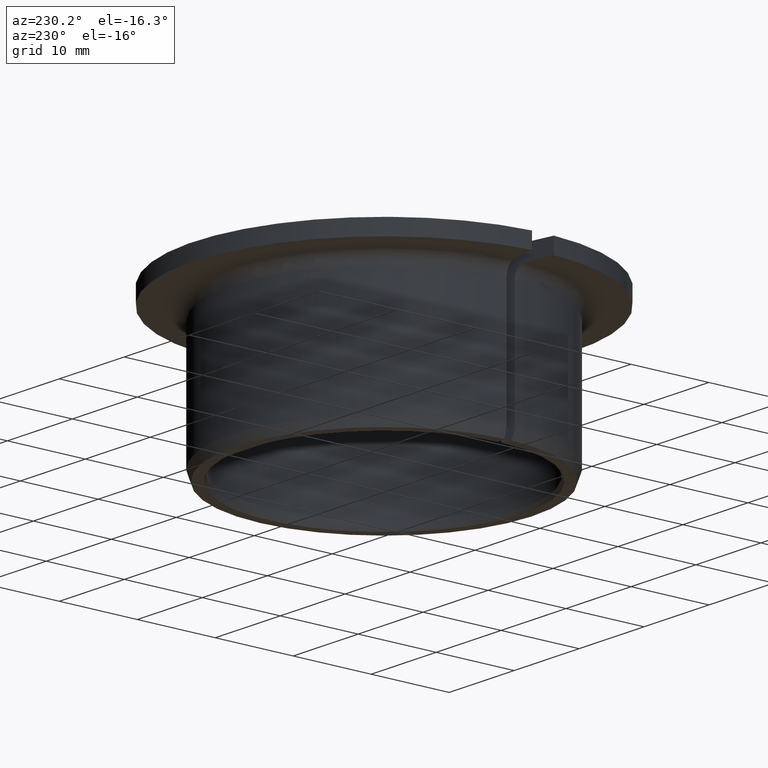
[diagram: clean part render]
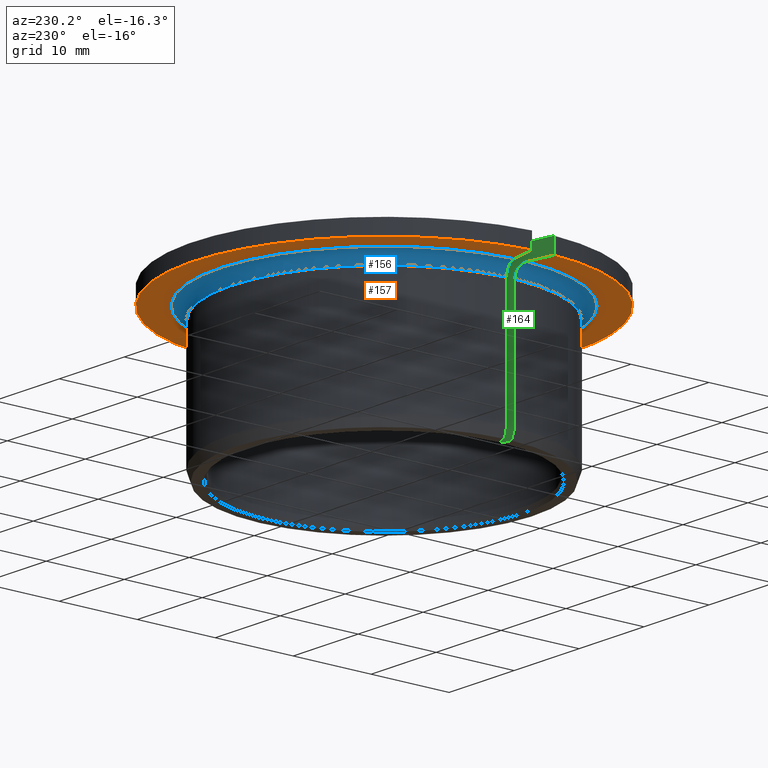
[diagram: same view with three faces highlighted in distinct colors, each labeled with its STEP entity id]
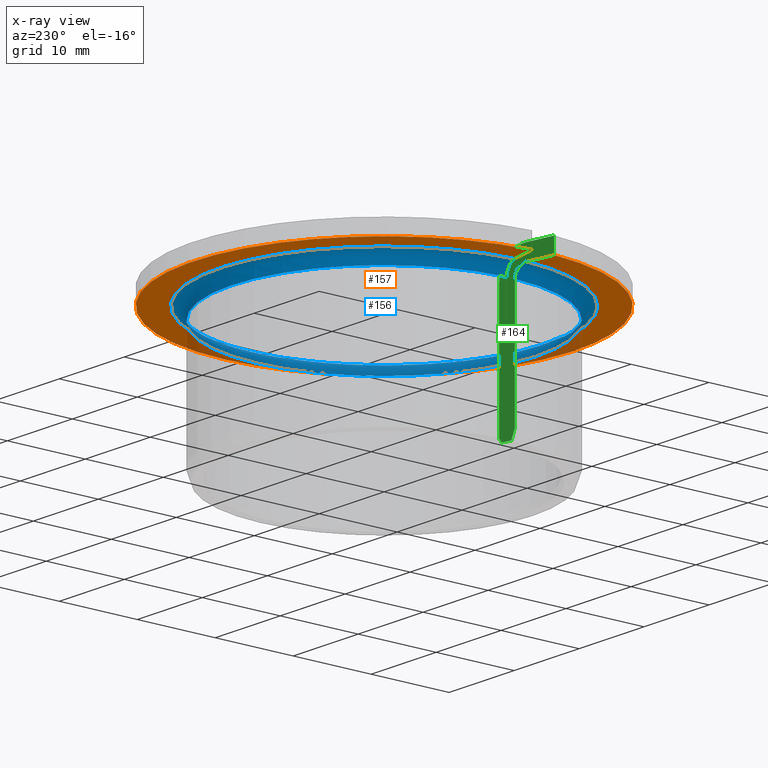
[diagram: x-ray of the same camera — body ghosted, the three highlighted faces saturated]
A machine part, auxiliary view with three faces highlighted in distinct colors.
The next image is the same camera in x-ray (body ghosted, the three faces saturated) — at least one of them is partly hidden behind the body in this view.
Their STEP definitions:

[orange] entity #157 — the highlighted planar face has unit normal (-0, 0, -1).
#157=ADVANCED_FACE('',(#175),#176,.T.);
#175=FACE_OUTER_BOUND('',#200,.T.);
#176=PLANE('',#201);
#200=EDGE_LOOP('',(#250,#251,#252,#253));
#201=AXIS2_PLACEMENT_3D('',#254,#255,#256);
#250=ORIENTED_EDGE('',*,*,#331,.T.);
#251=ORIENTED_EDGE('',*,*,#332,.T.);
#252=ORIENTED_EDGE('',*,*,#328,.F.);
#253=ORIENTED_EDGE('',*,*,#315,.F.);
#254=CARTESIAN_POINT('',(0.021,0.0,0.018));
#255=DIRECTION('',(0.0,-6.12323399573677E-017,-1.0));
#256=DIRECTION('',(0.0,1.0,-6.12323399573677E-017));
#315=EDGE_CURVE('',#347,#349,#350,.T.);
#328=EDGE_CURVE('',#349,#372,#373,.T.);
#331=EDGE_CURVE('',#347,#377,#378,.T.);
#332=EDGE_CURVE('',#377,#372,#379,.T.);
#347=VERTEX_POINT('',#415);
#349=VERTEX_POINT('',#418);
#350=LINE('',#419,#420);
#372=VERTEX_POINT('',#484);
#373=CIRCLE('',#485,0.021);
#377=VERTEX_POINT('',#502);
#378=CIRCLE('',#503,0.0245);
#379=LINE('',#504,#505);
#415=CARTESIAN_POINT('',(0.0244597654861355,-0.00140352141531771,0.018));
#418=CARTESIAN_POINT('',(0.0209851033973357,-0.000790844740217481,0.018));
#419=CARTESIAN_POINT('',(0.0208643083967683,-0.000769545322482752,0.018));
#420=VECTOR('',#528,1.0);
#484=CARTESIAN_POINT('',(0.0209851033973357,0.000790844740217485,0.018));
#485=AXIS2_PLACEMENT_3D('',#544,#545,#546);
#502=CARTESIAN_POINT('',(0.0244597654861355,0.00140352141531772,0.018));
#503=AXIS2_PLACEMENT_3D('',#550,#551,#552);
#504=CARTESIAN_POINT('',(0.0208643083967683,0.000769545322482756,0.018));
#505=VECTOR('',#553,1.0);
#528=DIRECTION('',(-0.984807753012208,0.173648177666931,-1.06328842478789E-017));
#544=CARTESIAN_POINT('',(0.0,0.0,0.018));
#545=DIRECTION('',(0.0,-6.12323399573677E-017,-1.0));
#546=DIRECTION('',(0.0,1.0,-6.12323399573677E-017));
#550=CARTESIAN_POINT('',(0.0,0.0,0.018));
#551=DIRECTION('',(0.0,-6.12323399573677E-017,-1.0));
#552=DIRECTION('',(0.0,1.0,-6.12323399573677E-017));
#553=DIRECTION('',(-0.984807753012208,-0.173648177666931,1.06328842478789E-017));

[blue] entity #156 — the highlighted toroidal blend (fillet) surface has major radius 21 mm and minor (blend) radius 1.5 mm.
#156=ADVANCED_FACE('',(#173),#174,.F.);
#173=FACE_OUTER_BOUND('',#198,.T.);
#174=TOROIDAL_SURFACE('',#199,0.021,0.0015);
#198=EDGE_LOOP('',(#243,#244,#245,#246));
#199=AXIS2_PLACEMENT_3D('',#247,#248,#249);
#243=ORIENTED_EDGE('',*,*,#328,.T.);
#244=ORIENTED_EDGE('',*,*,#329,.T.);
#245=ORIENTED_EDGE('',*,*,#330,.F.);
#246=ORIENTED_EDGE('',*,*,#316,.F.);
#247=CARTESIAN_POINT('',(0.0,0.0,0.0165));
#248=DIRECTION('',(0.0,-6.12323399573677E-017,-1.0));
#249=DIRECTION('',(0.0,1.0,-6.12323399573677E-017));
#316=EDGE_CURVE('',#349,#351,#352,.T.);
#328=EDGE_CURVE('',#349,#372,#373,.T.);
#329=EDGE_CURVE('',#372,#374,#375,.T.);
#330=EDGE_CURVE('',#351,#374,#376,.T.);
#349=VERTEX_POINT('',#418);
#351=VERTEX_POINT('',#421);
#352=B_SPLINE_CURVE_WITH_KNOTS('',3,(#422,#423,#424,#425,#426,#427,#428,#429,#430,#431,#432,#433,#434,#435),.UNSPECIFIED.,.F.,.F.,(4,2,2,2,2,2,4),(1.5125361572905E-005,0.00030952695449927,0.000603928547425635,0.000898330140352,0.00119273173327836,0.00178153491913109,0.00237033810498382),.UNSPECIFIED.);
#372=VERTEX_POINT('',#484);
#373=CIRCLE('',#485,0.021);
#374=VERTEX_POINT('',#486);
#375=B_SPLINE_CURVE_WITH_KNOTS('',3,(#487,#488,#489,#490,#491,#492,#493,#494,#495,#496,#497,#498,#499,#500),.UNSPECIFIED.,.F.,.F.,(4,2,2,2,2,2,4),(1.5125361572905E-005,0.00030952695449927,0.000603928547425635,0.000898330140352,0.00119273173327836,0.00178153491913109,0.00237033810498382),.UNSPECIFIED.);
#376=CIRCLE('',#501,0.0195);
#418=CARTESIAN_POINT('',(0.0209851033973357,-0.000790844740217481,0.018));
#421=CARTESIAN_POINT('',(0.0194928579205826,-0.000527721600825752,0.0165));
#422=CARTESIAN_POINT('',(0.0209851033973357,-0.000790844740217483,0.018));
#423=CARTESIAN_POINT('',(0.020887234603486,-0.000773587831292377,0.018));
#424=CARTESIAN_POINT('',(0.0207908761436344,-0.000756597235001043,0.0179904013861209));
#425=CARTESIAN_POINT('',(0.0206010739036773,-0.0007231299790977,0.0179526805169067));
#426=CARTESIAN_POINT('',(0.0205066387155741,-0.000706478507506826,0.0179240876814515));
#427=CARTESIAN_POINT('',(0.0203266420344327,-0.000674740236183614,0.0178494867840182));
#428=CARTESIAN_POINT('',(0.0202411221118634,-0.000659660766446542,0.0178037852975727));
#429=CARTESIAN_POINT('',(0.0200790171185027,-0.000631077282409484,0.0176956214893007));
#430=CARTESIAN_POINT('',(0.0200021474508167,-0.000617523085998351,0.0176325952962743));
#431=CARTESIAN_POINT('',(0.0197951778992534,-0.000581028769872612,0.0174257879324392));
#432=CARTESIAN_POINT('',(0.0196832067906457,-0.000561285242365243,0.0172585812978061));
#433=CARTESIAN_POINT('',(0.0195329495153544,-0.000534790830683643,0.0168969470921935));
#434=CARTESIAN_POINT('',(0.0194928579205806,-0.000527721600825397,0.0166991392971471));
#435=CARTESIAN_POINT('',(0.0194928579205806,-0.000527721600825391,0.0165000000000002));
#484=CARTESIAN_POINT('',(0.0209851033973357,0.000790844740217485,0.018));
#485=AXIS2_PLACEMENT_3D('',#544,#545,#546);
#486=CARTESIAN_POINT('',(0.0194928579205826,0.000527721600825754,0.0165));
#487=CARTESIAN_POINT('',(0.0209851033973357,0.000790844740217486,0.018));
#488=CARTESIAN_POINT('',(0.020887234603486,0.00077358783129238,0.018));
#489=CARTESIAN_POINT('',(0.0207908761436344,0.000756597235001047,0.0179904013861209));
#490=CARTESIAN_POINT('',(0.0206010739036773,0.000723129979097703,0.0179526805169067));
#491=CARTESIAN_POINT('',(0.0205066387155741,0.000706478507506829,0.0179240876814515));
#492=CARTESIAN_POINT('',(0.0203266420344327,0.000674740236183617,0.0178494867840182));
#493=CARTESIAN_POINT('',(0.0202411221118634,0.000659660766446545,0.0178037852975727));
#494=CARTESIAN_POINT('',(0.0200790171185027,0.000631077282409487,0.0176956214893007));
#495=CARTESIAN_POINT('',(0.0200021474508167,0.000617523085998354,0.0176325952962743));
#496=CARTESIAN_POINT('',(0.0197951778992534,0.000581028769872615,0.0174257879324392));
#497=CARTESIAN_POINT('',(0.0196832067906457,0.000561285242365246,0.0172585812978061));
#498=CARTESIAN_POINT('',(0.0195329495153544,0.000534790830683646,0.0168969470921935));
#499=CARTESIAN_POINT('',(0.0194928579205806,0.0005277216008254,0.0166991392971471));
#500=CARTESIAN_POINT('',(0.0194928579205806,0.000527721600825394,0.0165000000000002));
#501=AXIS2_PLACEMENT_3D('',#547,#548,#549);
#544=CARTESIAN_POINT('',(0.0,0.0,0.018));
#545=DIRECTION('',(0.0,-6.12323399573677E-017,-1.0));
#546=DIRECTION('',(0.0,1.0,-6.12323399573677E-017));
#547=CARTESIAN_POINT('',(0.0,0.0,0.0165));
#548=DIRECTION('',(0.0,-6.12323399573677E-017,-1.0));
#549=DIRECTION('',(0.0,1.0,-6.12323399573677E-017));

[green] entity #164 — the highlighted planar face has unit normal (-0.1736, 0.9848, 0).
#164=ADVANCED_FACE('',(#189),#190,.T.);
#189=FACE_OUTER_BOUND('',#214,.T.);
#190=PLANE('',#215);
#214=EDGE_LOOP('',(#299,#300,#301,#302,#303,#304,#305,#306,#307,#308));
#215=AXIS2_PLACEMENT_3D('',#309,#310,#311);
#299=ORIENTED_EDGE('',*,*,#338,.F.);
#300=ORIENTED_EDGE('',*,*,#323,.F.);
#301=ORIENTED_EDGE('',*,*,#340,.T.);
#302=ORIENTED_EDGE('',*,*,#341,.F.);
#303=ORIENTED_EDGE('',*,*,#336,.F.);
#304=ORIENTED_EDGE('',*,*,#329,.F.);
#305=ORIENTED_EDGE('',*,*,#332,.F.);
#306=ORIENTED_EDGE('',*,*,#334,.F.);
#307=ORIENTED_EDGE('',*,*,#335,.T.);
#308=ORIENTED_EDGE('',*,*,#326,.F.);
#309=CARTESIAN_POINT('',(0.00579044144318367,-0.00188838412504393,-7.15489013713033E-019));
#310=DIRECTION('',(0.173648177666931,-0.984807753012208,8.30434118528652E-017));
#311=DIRECTION('',(-6.20418997778693E-018,-8.54184564237123E-017,-1.0));
#323=EDGE_CURVE('',#362,#364,#365,.T.);
#326=EDGE_CURVE('',#367,#369,#370,.T.);
#329=EDGE_CURVE('',#372,#374,#375,.T.);
#332=EDGE_CURVE('',#377,#372,#379,.T.);
#334=EDGE_CURVE('',#380,#377,#382,.T.);
#335=EDGE_CURVE('',#380,#369,#383,.T.);
#336=EDGE_CURVE('',#374,#384,#385,.T.);
#338=EDGE_CURVE('',#364,#367,#387,.F.);
#340=EDGE_CURVE('',#362,#388,#390,.T.);
#341=EDGE_CURVE('',#384,#388,#391,.T.);
#362=VERTEX_POINT('',#454);
#364=VERTEX_POINT('',#456);
#365=B_SPLINE_CURVE_WITH_KNOTS('',3,(#457,#458,#459,#460),.UNSPECIFIED.,.F.,.F.,(4,4),(2.3170768394626E-007,0.000579533393781442),.UNSPECIFIED.);
#367=VERTEX_POINT('',#462);
#369=VERTEX_POINT('',#464);
#370=B_SPLINE_CURVE_WITH_KNOTS('',3,(#465,#466,#467,#468,#469,#470,#471,#472,#473,#474,#475,#476,#477,#478,#479,#480,#481,#482),.UNSPECIFIED.,.F.,.F.,(4,2,2,2,2,2,2,2,4),(1.97144213459032E-007,0.00068744007708658,0.0013746830099597,0.00206192594283282,0.00274916887570594,0.00343641180857906,0.00412365474145218,0.00481089767432531,0.00549814060719843),.UNSPECIFIED.);
#372=VERTEX_POINT('',#484);
#374=VERTEX_POINT('',#486);
#375=B_SPLINE_CURVE_WITH_KNOTS('',3,(#487,#488,#489,#490,#491,#492,#493,#494,#495,#496,#497,#498,#499,#500),.UNSPECIFIED.,.F.,.F.,(4,2,2,2,2,2,4),(1.5125361572905E-005,0.00030952695449927,0.000603928547425635,0.000898330140352,0.00119273173327836,0.00178153491913109,0.00237033810498382),.UNSPECIFIED.);
#377=VERTEX_POINT('',#502);
#379=LINE('',#504,#505);
#380=VERTEX_POINT('',#506);
#382=LINE('',#508,#509);
#383=LINE('',#510,#511);
#384=VERTEX_POINT('',#512);
#385=LINE('',#513,#514);
#387=LINE('',#516,#517);
#388=VERTEX_POINT('',#518);
#390=LINE('',#520,#521);
#391=B_SPLINE_CURVE_WITH_KNOTS('',3,(#522,#523,#524,#525),.UNSPECIFIED.,.F.,.F.,(4,4),(2.13110061065573E-007,0.00127891205483751),.UNSPECIFIED.);
#454=CARTESIAN_POINT('',(0.0177872270566494,0.000226972860385233,6.15709166660622E-019));
#456=CARTESIAN_POINT('',(0.0174991132321836,0.000176170619616813,0.0005));
#457=CARTESIAN_POINT('',(0.0177872270566494,0.000226972860385233,-3.54897581537848E-019));
#458=CARTESIAN_POINT('',(0.0176912048363039,0.000210041552190786,0.000166676006251675));
#459=CARTESIAN_POINT('',(0.0175951671585202,0.00019310751843293,0.000333342831684055));
#460=CARTESIAN_POINT('',(0.0174991132321836,0.000176170619616813,0.000500000000000008));
#462=CARTESIAN_POINT('',(0.0174991132321836,0.000176170619616814,0.0165));
#464=CARTESIAN_POINT('',(0.0209851033973357,0.000790844740217484,0.02));
#465=CARTESIAN_POINT('',(0.0174991132321836,0.000176170619616815,0.0165));
#466=CARTESIAN_POINT('',(0.0174991132321836,0.000176170619616815,0.0167323982433262));
#467=CARTESIAN_POINT('',(0.0175219915246278,0.000180204679847269,0.0169608286907469));
#468=CARTESIAN_POINT('',(0.0176115516317167,0.000195996543122181,0.0174100927146044));
#469=CARTESIAN_POINT('',(0.0176793702412228,0.000207954793772226,0.0176333091566987));
#470=CARTESIAN_POINT('',(0.0178558280399616,0.000239069064646305,0.0180579143322747));
#471=CARTESIAN_POINT('',(0.0179637108656093,0.000258091717563068,0.0182591604718311));
#472=CARTESIAN_POINT('',(0.0182183242230214,0.000302986922123586,0.0186397987129509));
#473=CARTESIAN_POINT('',(0.0183660376656832,0.000329032787478193,0.0188194058246123));
#474=CARTESIAN_POINT('',(0.0186881199836871,0.000385824590151402,0.0191411182028783));
#475=CARTESIAN_POINT('',(0.0188637408973689,0.000416791295610182,0.0192854588727117));
#476=CARTESIAN_POINT('',(0.0192448446075499,0.000483990162163186,0.0195403135456875));
#477=CARTESIAN_POINT('',(0.0194463331129644,0.000519518021970396,0.0196478702901084));
#478=CARTESIAN_POINT('',(0.0198640024898423,0.000593164402129651,0.0198212989317011));
#479=CARTESIAN_POINT('',(0.0200828561623802,0.000631754209425216,0.0198881397067106));
#480=CARTESIAN_POINT('',(0.0205302421854552,0.000710640436085199,0.0199775381628516));
#481=CARTESIAN_POINT('',(0.0207564185715369,0.000750521435350547,0.02));
#482=CARTESIAN_POINT('',(0.0209851033973357,0.000790844740217486,0.02));
#484=CARTESIAN_POINT('',(0.0209851033973357,0.000790844740217485,0.018));
#486=CARTESIAN_POINT('',(0.0194928579205826,0.000527721600825754,0.0165));
#487=CARTESIAN_POINT('',(0.0209851033973357,0.000790844740217486,0.018));
#488=CARTESIAN_POINT('',(0.020887234603486,0.00077358783129238,0.018));
#489=CARTESIAN_POINT('',(0.0207908761436344,0.000756597235001047,0.0179904013861209));
#490=CARTESIAN_POINT('',(0.0206010739036773,0.000723129979097703,0.0179526805169067));
#491=CARTESIAN_POINT('',(0.0205066387155741,0.000706478507506829,0.0179240876814515));
#492=CARTESIAN_POINT('',(0.0203266420344327,0.000674740236183617,0.0178494867840182));
#493=CARTESIAN_POINT('',(0.0202411221118634,0.000659660766446545,0.0178037852975727));
#494=CARTESIAN_POINT('',(0.0200790171185027,0.000631077282409487,0.0176956214893007));
#495=CARTESIAN_POINT('',(0.0200021474508167,0.000617523085998354,0.0176325952962743));
#496=CARTESIAN_POINT('',(0.0197951778992534,0.000581028769872615,0.0174257879324392));
#497=CARTESIAN_POINT('',(0.0196832067906457,0.000561285242365246,0.0172585812978061));
#498=CARTESIAN_POINT('',(0.0195329495153544,0.000534790830683646,0.0168969470921935));
#499=CARTESIAN_POINT('',(0.0194928579205806,0.0005277216008254,0.0166991392971471));
#500=CARTESIAN_POINT('',(0.0194928579205806,0.000527721600825394,0.0165000000000002));
#502=CARTESIAN_POINT('',(0.0244597654861355,0.00140352141531772,0.018));
#504=CARTESIAN_POINT('',(0.0208643083967683,0.000769545322482756,0.018));
#505=VECTOR('',#553,1.0);
#506=CARTESIAN_POINT('',(0.0244597654861355,0.00140352141531772,0.02));
#508=CARTESIAN_POINT('',(0.0244597654861355,0.00140352141531772,-2.07825606336985E-020));
#509=VECTOR('',#557,1.0);
#510=CARTESIAN_POINT('',(0.0302873085421709,0.00243107448733703,0.02));
#511=VECTOR('',#558,1.0);
#512=CARTESIAN_POINT('',(0.0194928579205826,0.000527721600825755,0.0012));
#513=CARTESIAN_POINT('',(0.0194928579205826,0.000527721600825753,3.2844711341873E-020));
#514=VECTOR('',#559,1.0);
#516=CARTESIAN_POINT('',(0.0174991132321836,0.000176170619616813,5.4371000535605E-020));
#517=VECTOR('',#563,1.0);
#518=CARTESIAN_POINT('',(0.0190578994383718,0.000451026684923967,-5.57457214895375E-020));
#520=CARTESIAN_POINT('',(0.0165,0.0,6.43083039248804E-019));
#521=VECTOR('',#567,1.0);
#522=CARTESIAN_POINT('',(0.0194928579205827,0.000527721600825755,0.0012));
#523=CARTESIAN_POINT('',(0.0193479040463929,0.000502162321847883,0.000799987934916398));
#524=CARTESIAN_POINT('',(0.0192029186392597,0.000476597482761293,0.000399987650145253));
#525=CARTESIAN_POINT('',(0.0190578994383717,0.000451026684923968,4.76385711392694E-018));
#553=DIRECTION('',(-0.984807753012208,-0.173648177666931,1.06328842478789E-017));
#557=DIRECTION('',(0.0,-6.12323399573677E-017,-1.0));
#558=DIRECTION('',(-0.984807753012208,-0.173648177666931,2.0942693688385E-017));
#559=DIRECTION('',(0.0,-6.12323399573677E-017,-1.0));
#563=DIRECTION('',(0.0,-6.12323399573677E-017,-1.0));
#567=DIRECTION('',(0.984807753012208,0.173648177666931,-2.0942693688385E-017));